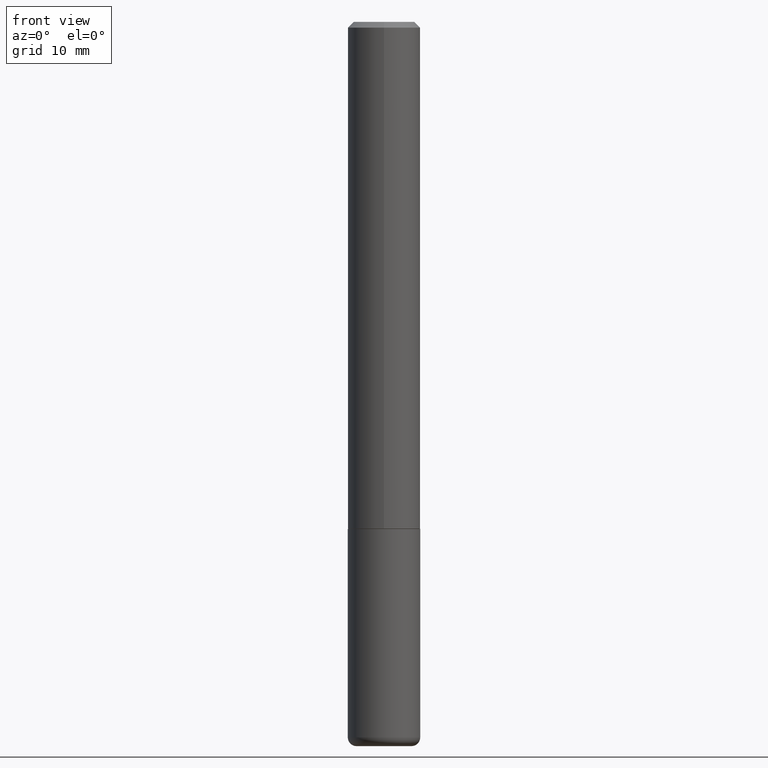
[diagram: clean part render]
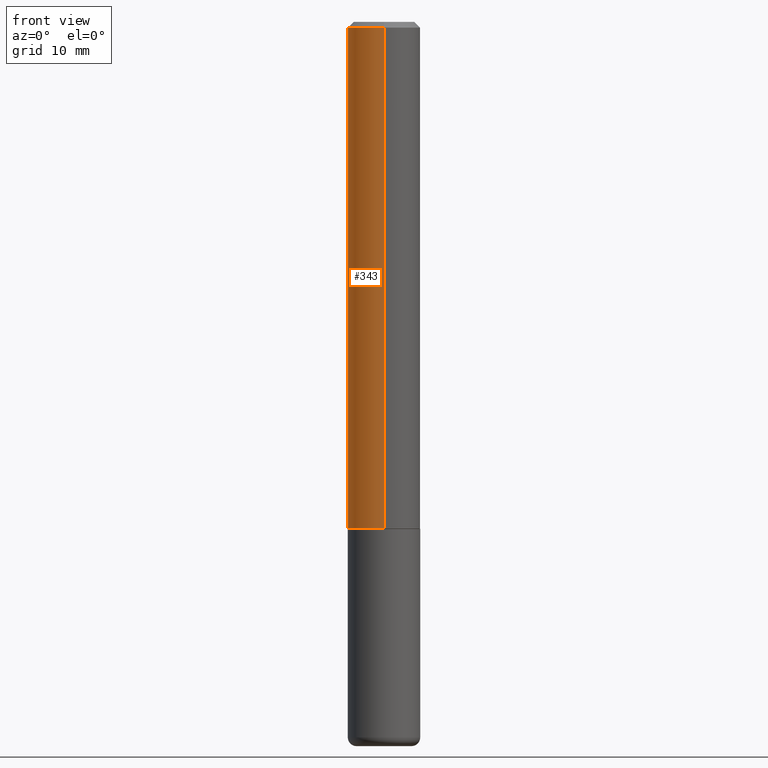
[diagram: same view with one face highlighted and labeled with its STEP entity id]
A machine part, front view. The second image highlights one B-rep face of the part: STEP entity #343.
In plain terms, the highlighted cylindrical surface (edge-blend (fillet) strip) has radius 3.175 mm, axis along (-0, 0, 1).
Its self-contained STEP definition (entity closure, byte-faithful):
#3 = DIRECTION ( 'NONE',  ( -2.444706075479919143E-29, 3.492573612624952424E-15, 1.000000000000000000 ) ) ;
#11 = CARTESIAN_POINT ( 'NONE',  ( 8.728703347107837333E-16, 0.1249999999999999306, -0.02000000000000046185 ) ) ;
#17 = EDGE_CURVE ( 'NONE', #200, #292, #107, .T. ) ;
#21 = DIRECTION ( 'NONE',  ( -2.444706075479919424E-29, 3.492573612624952424E-15, 1.000000000000000000 ) ) ;
#45 = ORIENTED_EDGE ( 'NONE', *, *, #17, .T. ) ;
#53 = LINE ( 'NONE', #344, #339 ) ;
#54 = ORIENTED_EDGE ( 'NONE', *, *, #307, .T. ) ;
#59 = DIRECTION ( 'NONE',  ( -2.444706075479919424E-29, 3.492573612624952424E-15, 1.000000000000000000 ) ) ;
#63 = FACE_OUTER_BOUND ( 'NONE', #85, .T. ) ;
#83 = CIRCLE ( 'NONE', #260, 0.1250000000000000000 ) ;
#85 = EDGE_LOOP ( 'NONE', ( #232, #45, #54, #386 ) ) ;
#87 = DIRECTION ( 'NONE',  ( -6.982962677686265922E-15, -1.000000000000000000, 3.483106191921935554E-15 ) ) ;
#95 = DIRECTION ( 'NONE',  ( -2.444706075479919424E-29, 3.492573612624952424E-15, 1.000000000000000000 ) ) ;
#96 = AXIS2_PLACEMENT_3D ( 'NONE', #314, #95, #219 ) ;
#105 = CARTESIAN_POINT ( 'NONE',  ( 8.881784197001479121E-16, 0.1249999999999941019, -1.749000000000000554 ) ) ;
#107 = CIRCLE ( 'NONE', #158, 0.1250000000000002498 ) ;
#123 = VECTOR ( 'NONE', #3, 39.37007874015748143 ) ;
#129 = VERTEX_POINT ( 'NONE', #164 ) ;
#143 = DIRECTION ( 'NONE',  ( -2.444706075479919143E-29, 3.492573612624952424E-15, 1.000000000000000000 ) ) ;
#158 = AXIS2_PLACEMENT_3D ( 'NONE', #215, #59, #312 ) ;
#164 = CARTESIAN_POINT ( 'NONE',  ( -8.575622497214408537E-16, -0.1250000000000000555, -0.01999999999999959102 ) ) ;
#200 = VERTEX_POINT ( 'NONE', #105 ) ;
#202 = EDGE_CURVE ( 'NONE', #200, #231, #233, .T. ) ;
#215 = CARTESIAN_POINT ( 'NONE',  ( 4.275790926014379252E-29, -6.108511248481041332E-15, -1.749000000000000110 ) ) ;
#219 = DIRECTION ( 'NONE',  ( -6.982962677686266711E-15, -1.000000000000000000, 3.492573612624952818E-15 ) ) ;
#231 = VERTEX_POINT ( 'NONE', #11 ) ;
#232 = ORIENTED_EDGE ( 'NONE', *, *, #202, .F. ) ;
#233 = LINE ( 'NONE', #361, #123 ) ;
#250 = EDGE_CURVE ( 'NONE', #231, #129, #83, .T. ) ;
#260 = AXIS2_PLACEMENT_3D ( 'NONE', #374, #21, #87 ) ;
#292 = VERTEX_POINT ( 'NONE', #340 ) ;
#307 = EDGE_CURVE ( 'NONE', #292, #129, #53, .T. ) ;
#312 = DIRECTION ( 'NONE',  ( -6.982962677686265133E-15, -1.000000000000000000, 4.370956789862812472E-15 ) ) ;
#314 = CARTESIAN_POINT ( 'NONE',  ( 0.000000000000000000, 0.000000000000000000, 0.000000000000000000 ) ) ;
#339 = VECTOR ( 'NONE', #143, 39.37007874015748143 ) ;
#340 = CARTESIAN_POINT ( 'NONE',  ( -8.728703347107422194E-16, -0.1250000000000063560, -1.748999999999999666 ) ) ;
#343 = ADVANCED_FACE ( 'NONE', ( #63 ), #381, .T. ) ;
#344 = CARTESIAN_POINT ( 'NONE',  ( -8.728703347107841277E-16, -0.1250000000000001110, 4.365717015781194967E-16 ) ) ;
#361 = CARTESIAN_POINT ( 'NONE',  ( 8.881784197001260212E-16, 0.1250000000000001110, -4.365717015781194967E-16 ) ) ;
#374 = CARTESIAN_POINT ( 'NONE',  ( 4.889412150959845398E-31, -6.985147225249911602E-17, -0.02000000000000002470 ) ) ;
#381 = CYLINDRICAL_SURFACE ( 'NONE', #96, 0.1250000000000001110 ) ;
#386 = ORIENTED_EDGE ( 'NONE', *, *, #250, .F. ) ;